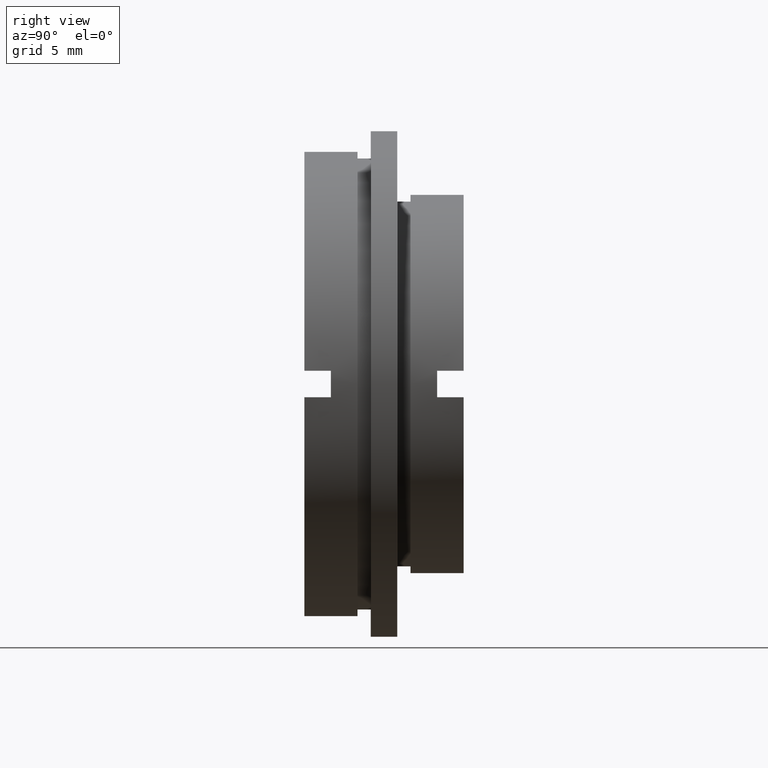
[diagram: clean part render]
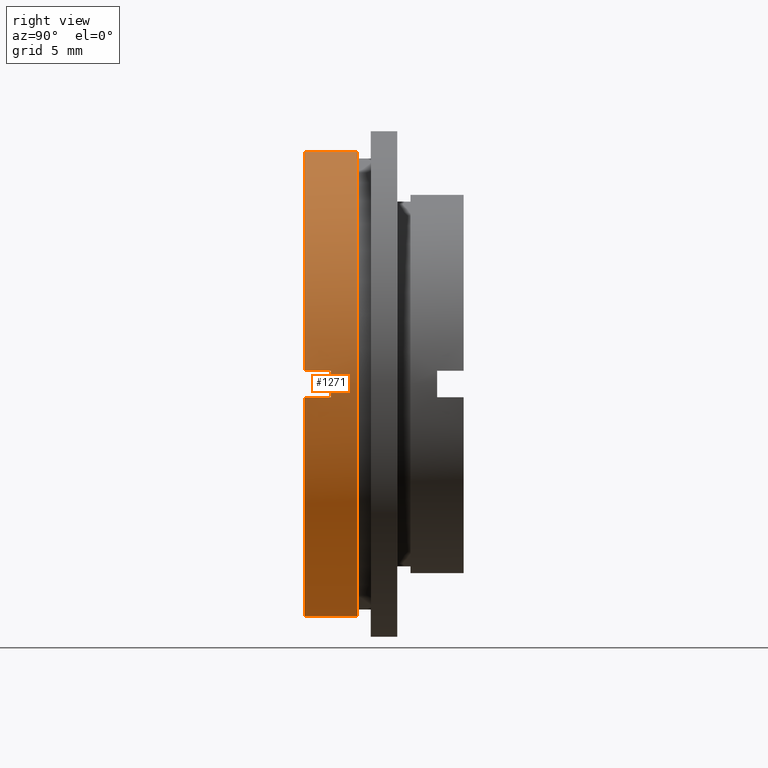
[diagram: same view with one face highlighted and labeled with its STEP entity id]
A machine part, right view. The second image highlights one B-rep face of the part: STEP entity #1271.
In plain terms, the highlighted cylindrical surface (partial cylindrical patch) has radius 17.5 mm, axis along (-0, 1, -0).
Its self-contained STEP definition (entity closure, byte-faithful):
#5 = EDGE_CURVE ( 'NONE', #615, #888, #1092, .T. ) ;
#9 = LINE ( 'NONE', #708, #278 ) ;
#43 = CARTESIAN_POINT ( 'NONE',  ( 2.143131898507867900E-015, 4.000000000000000000, -17.49999999999999600 ) ) ;
#73 = CARTESIAN_POINT ( 'NONE',  ( 17.47140520965614700, 2.000000000000000000, -0.9999999999999995600 ) ) ;
#99 = CARTESIAN_POINT ( 'NONE',  ( 0.0000000000000000000, 1.999999999999998200, 0.0000000000000000000 ) ) ;
#105 = CARTESIAN_POINT ( 'NONE',  ( 0.0000000000000000000, 0.0000000000000000000, 0.0000000000000000000 ) ) ;
#146 = AXIS2_PLACEMENT_3D ( 'NONE', #1068, #313, #1228 ) ;
#152 = ORIENTED_EDGE ( 'NONE', *, *, #1118, .F. ) ;
#156 = ORIENTED_EDGE ( 'NONE', *, *, #995, .T. ) ;
#170 = AXIS2_PLACEMENT_3D ( 'NONE', #755, #983, #921 ) ;
#179 = LINE ( 'NONE', #1116, #1328 ) ;
#206 = EDGE_CURVE ( 'NONE', #979, #615, #1274, .T. ) ;
#215 = CARTESIAN_POINT ( 'NONE',  ( 0.0000000000000000000, 22.67749945107591400, 17.49999999999999600 ) ) ;
#230 = CIRCLE ( 'NONE', #723, 17.49999999999999600 ) ;
#231 = DIRECTION ( 'NONE',  ( -0.0000000000000000000, 1.000000000000000000, -0.0000000000000000000 ) ) ;
#269 = FACE_OUTER_BOUND ( 'NONE', #1094, .T. ) ;
#278 = VECTOR ( 'NONE', #564, 1000.000000000000000 ) ;
#313 = DIRECTION ( 'NONE',  ( -0.0000000000000000000, 1.000000000000000000, -0.0000000000000000000 ) ) ;
#322 = VECTOR ( 'NONE', #231, 1000.000000000000000 ) ;
#329 = DIRECTION ( 'NONE',  ( -0.0000000000000000000, -1.000000000000000000, -0.0000000000000000000 ) ) ;
#344 = DIRECTION ( 'NONE',  ( 0.0000000000000000000, 0.0000000000000000000, 1.000000000000000000 ) ) ;
#369 = DIRECTION ( 'NONE',  ( -0.0000000000000000000, 1.000000000000000000, -0.0000000000000000000 ) ) ;
#382 = VERTEX_POINT ( 'NONE', #43 ) ;
#425 = CARTESIAN_POINT ( 'NONE',  ( 17.47140520965614400, 0.0000000000000000000, -1.000000000000000000 ) ) ;
#489 = EDGE_CURVE ( 'NONE', #979, #1252, #716, .T. ) ;
#528 = EDGE_CURVE ( 'NONE', #891, #1122, #682, .T. ) ;
#564 = DIRECTION ( 'NONE',  ( -0.0000000000000000000, 1.000000000000000000, -0.0000000000000000000 ) ) ;
#570 = CARTESIAN_POINT ( 'NONE',  ( 0.0000000000000000000, 0.0000000000000000000, 17.49999999999999600 ) ) ;
#586 = ORIENTED_EDGE ( 'NONE', *, *, #489, .T. ) ;
#615 = VERTEX_POINT ( 'NONE', #73 ) ;
#616 = CARTESIAN_POINT ( 'NONE',  ( 17.47140520965614400, 1.999999999999998200, 1.000000000000000200 ) ) ;
#622 = CARTESIAN_POINT ( 'NONE',  ( 17.47140520965614400, 22.67749945107591400, -0.9999999999999943400 ) ) ;
#667 = CARTESIAN_POINT ( 'NONE',  ( 2.143131898507867900E-015, 0.0000000000000000000, -17.49999999999999600 ) ) ;
#682 = LINE ( 'NONE', #215, #322 ) ;
#691 = ORIENTED_EDGE ( 'NONE', *, *, #206, .F. ) ;
#706 = CARTESIAN_POINT ( 'NONE',  ( 17.47140520965614400, 0.0000000000000000000, 1.000000000000000000 ) ) ;
#708 = CARTESIAN_POINT ( 'NONE',  ( 2.143131898507867900E-015, 22.67749945107591400, -17.49999999999999600 ) ) ;
#716 = CIRCLE ( 'NONE', #767, 17.49999999999999600 ) ;
#717 = DIRECTION ( 'NONE',  ( 3.730349362740526000E-014, 0.0000000000000000000, 1.000000000000000000 ) ) ;
#723 = AXIS2_PLACEMENT_3D ( 'NONE', #105, #369, #344 ) ;
#749 = VECTOR ( 'NONE', #1221, 1000.000000000000000 ) ;
#755 = CARTESIAN_POINT ( 'NONE',  ( 0.0000000000000000000, 4.000000000000000000, 0.0000000000000000000 ) ) ;
#767 = AXIS2_PLACEMENT_3D ( 'NONE', #1208, #1213, #1215 ) ;
#888 = VERTEX_POINT ( 'NONE', #616 ) ;
#891 = VERTEX_POINT ( 'NONE', #570 ) ;
#921 = DIRECTION ( 'NONE',  ( 0.0000000000000000000, 0.0000000000000000000, 1.000000000000000000 ) ) ;
#928 = EDGE_CURVE ( 'NONE', #1252, #382, #9, .T. ) ;
#948 = ORIENTED_EDGE ( 'NONE', *, *, #528, .F. ) ;
#979 = VERTEX_POINT ( 'NONE', #425 ) ;
#983 = DIRECTION ( 'NONE',  ( -0.0000000000000000000, 1.000000000000000000, -0.0000000000000000000 ) ) ;
#995 = EDGE_CURVE ( 'NONE', #891, #1253, #230, .T. ) ;
#1054 = DIRECTION ( 'NONE',  ( 0.0000000000000000000, -1.000000000000000000, 0.0000000000000000000 ) ) ;
#1068 = CARTESIAN_POINT ( 'NONE',  ( 0.0000000000000000000, 22.67749945107591400, 0.0000000000000000000 ) ) ;
#1075 = AXIS2_PLACEMENT_3D ( 'NONE', #99, #329, #717 ) ;
#1087 = ORIENTED_EDGE ( 'NONE', *, *, #928, .T. ) ;
#1092 = CIRCLE ( 'NONE', #1075, 17.49999999999999600 ) ;
#1094 = EDGE_LOOP ( 'NONE', ( #586, #1087, #152, #948, #156, #1128, #1241, #691 ) ) ;
#1105 = CIRCLE ( 'NONE', #170, 17.49999999999999600 ) ;
#1116 = CARTESIAN_POINT ( 'NONE',  ( 17.47140520965614400, 22.67749945107591400, 1.000000000000003800 ) ) ;
#1118 = EDGE_CURVE ( 'NONE', #1122, #382, #1105, .T. ) ;
#1122 = VERTEX_POINT ( 'NONE', #1146 ) ;
#1128 = ORIENTED_EDGE ( 'NONE', *, *, #1206, .F. ) ;
#1146 = CARTESIAN_POINT ( 'NONE',  ( 0.0000000000000000000, 4.000000000000000000, 17.49999999999999600 ) ) ;
#1206 = EDGE_CURVE ( 'NONE', #888, #1253, #179, .T. ) ;
#1208 = CARTESIAN_POINT ( 'NONE',  ( 0.0000000000000000000, 0.0000000000000000000, 0.0000000000000000000 ) ) ;
#1213 = DIRECTION ( 'NONE',  ( -0.0000000000000000000, 1.000000000000000000, -0.0000000000000000000 ) ) ;
#1215 = DIRECTION ( 'NONE',  ( 0.0000000000000000000, 0.0000000000000000000, 1.000000000000000000 ) ) ;
#1221 = DIRECTION ( 'NONE',  ( -0.0000000000000000000, 1.000000000000000000, -0.0000000000000000000 ) ) ;
#1225 = CYLINDRICAL_SURFACE ( 'NONE', #146, 17.49999999999999600 ) ;
#1228 = DIRECTION ( 'NONE',  ( 0.0000000000000000000, 0.0000000000000000000, 1.000000000000000000 ) ) ;
#1241 = ORIENTED_EDGE ( 'NONE', *, *, #5, .F. ) ;
#1252 = VERTEX_POINT ( 'NONE', #667 ) ;
#1253 = VERTEX_POINT ( 'NONE', #706 ) ;
#1271 = ADVANCED_FACE ( 'NONE', ( #269 ), #1225, .T. ) ;
#1274 = LINE ( 'NONE', #622, #749 ) ;
#1328 = VECTOR ( 'NONE', #1054, 1000.000000000000000 ) ;